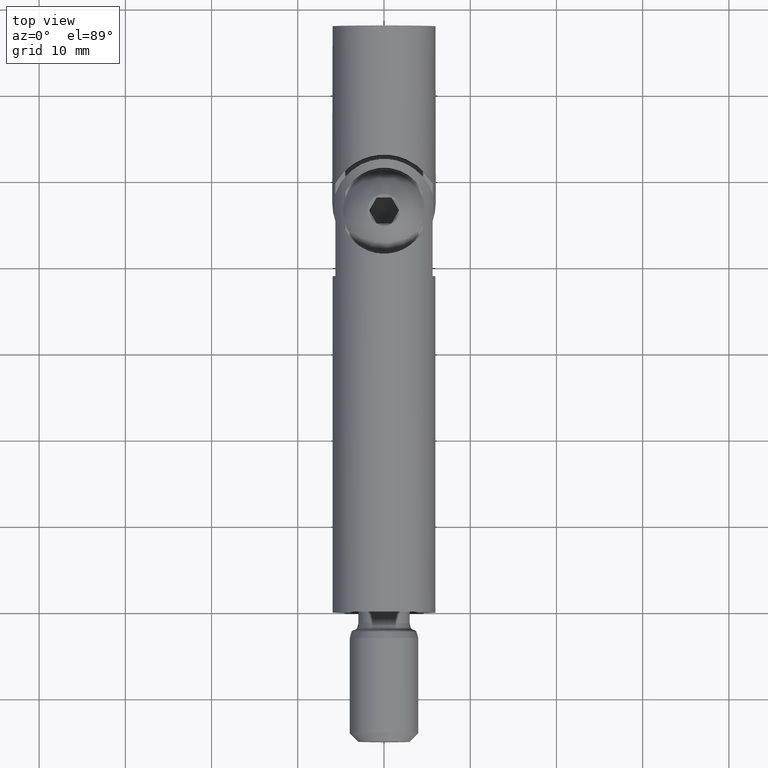
[diagram: clean part render]
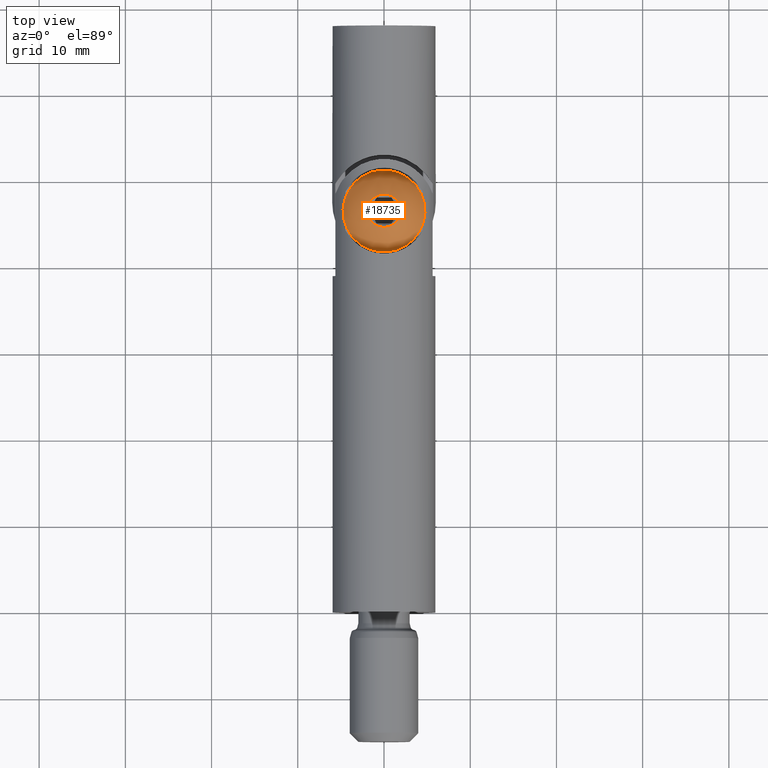
[diagram: same view with one face highlighted and labeled with its STEP entity id]
A machine part, top view. The second image highlights one B-rep face of the part: STEP entity #18735.
In plain terms, the highlighted spherical surface has radius 5.2873 mm.
Its self-contained STEP definition (entity closure, byte-faithful):
#15 = DIRECTION ( 'NONE',  ( 0.000000000000000000, 0.000000000000000000, -1.000000000000000000 ) ) ;
#364 = CIRCLE ( 'NONE', #5042, 4.750000000000000000 ) ;
#555 = AXIS2_PLACEMENT_3D ( 'NONE', #2105, #15137, #3281 ) ;
#873 = FACE_OUTER_BOUND ( 'NONE', #10315, .T. ) ;
#2105 = CARTESIAN_POINT ( 'NONE',  ( 0.000000000000000000, 8.673617379884035472E-16, 0.000000000000000000 ) ) ;
#2397 = ORIENTED_EDGE ( 'NONE', *, *, #9060, .F. ) ;
#3281 = DIRECTION ( 'NONE',  ( 0.000000000000000000, 0.000000000000000000, -1.000000000000000000 ) ) ;
#3676 = SPHERICAL_SURFACE ( 'NONE', #8839, 5.287252652107483186 ) ;
#4810 = FACE_OUTER_BOUND ( 'NONE', #9082, .T. ) ;
#4881 = CARTESIAN_POINT ( 'NONE',  ( 0.000000000000000000, 2.599050000000000082, -4.750000000000000000 ) ) ;
#5042 = AXIS2_PLACEMENT_3D ( 'NONE', #16282, #9105, #15 ) ;
#5599 = CIRCLE ( 'NONE', #555, 1.933000807568878709 ) ;
#6005 = VERTEX_POINT ( 'NONE', #4881 ) ;
#7743 = ORIENTED_EDGE ( 'NONE', *, *, #11157, .T. ) ;
#8839 = AXIS2_PLACEMENT_3D ( 'NONE', #17427, #11582, #10093 ) ;
#9060 = EDGE_CURVE ( 'NONE', #17973, #17973, #5599, .T. ) ;
#9082 = EDGE_LOOP ( 'NONE', ( #2397 ) ) ;
#9105 = DIRECTION ( 'NONE',  ( -0.000000000000000000, -1.000000000000000000, -0.000000000000000000 ) ) ;
#10093 = DIRECTION ( 'NONE',  ( 1.000000000000000000, 0.000000000000000000, 0.000000000000000000 ) ) ;
#10315 = EDGE_LOOP ( 'NONE', ( #7743 ) ) ;
#11157 = EDGE_CURVE ( 'NONE', #6005, #6005, #364, .T. ) ;
#11582 = DIRECTION ( 'NONE',  ( 0.000000000000000000, 0.000000000000000000, 1.000000000000000000 ) ) ;
#15137 = DIRECTION ( 'NONE',  ( -0.000000000000000000, -1.000000000000000000, -0.000000000000000000 ) ) ;
#16282 = CARTESIAN_POINT ( 'NONE',  ( 0.000000000000000000, 2.599050000000000082, 0.000000000000000000 ) ) ;
#16686 = CARTESIAN_POINT ( 'NONE',  ( 0.000000000000000000, 8.673617379884035472E-16, -1.933000807568878709 ) ) ;
#17427 = CARTESIAN_POINT ( 'NONE',  ( 0.000000000000000000, 4.921234447286137126, 0.000000000000000000 ) ) ;
#17973 = VERTEX_POINT ( 'NONE', #16686 ) ;
#18735 = ADVANCED_FACE ( 'NONE', ( #873, #4810 ), #3676, .T. ) ;